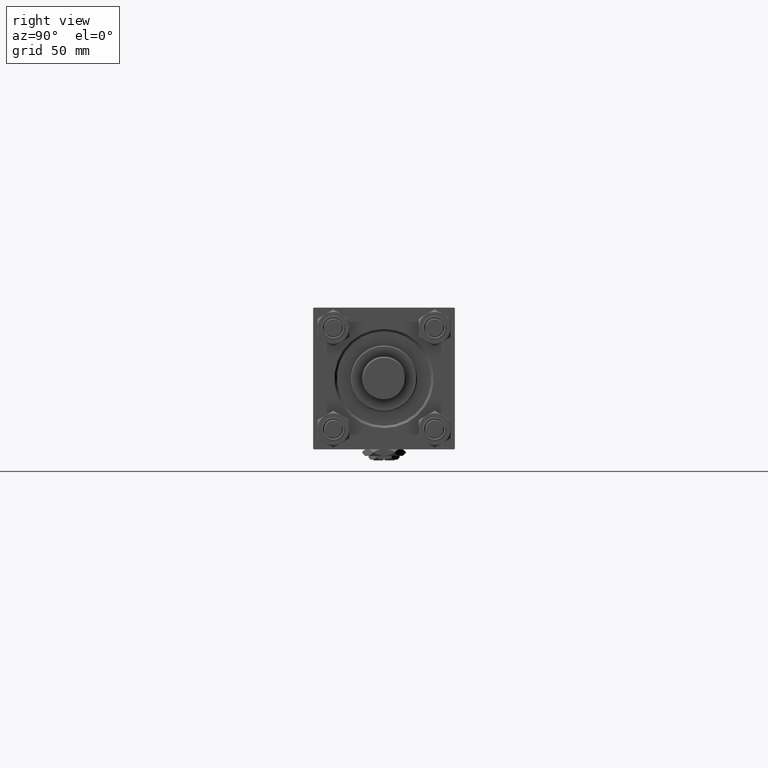
[diagram: clean part render]
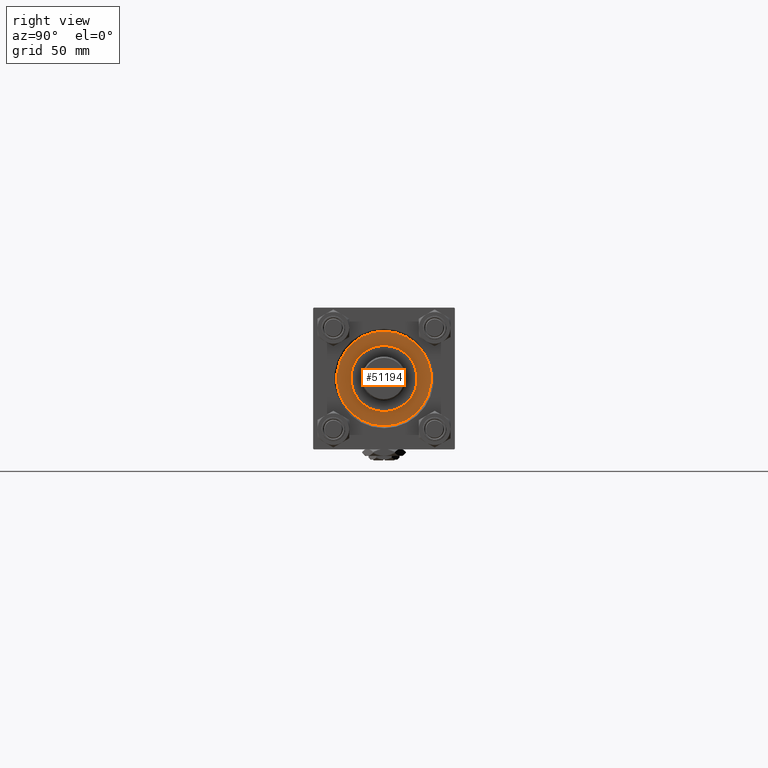
[diagram: same view with one face highlighted and labeled with its STEP entity id]
A machine part, right view. The second image highlights one B-rep face of the part: STEP entity #51194.
In plain terms, the highlighted planar face has unit normal (1, 0, -0).
Its self-contained STEP definition (entity closure, byte-faithful):
#3715 = FACE_BOUND ( 'NONE', #30702, .T. ) ;
#4479 = CIRCLE ( 'NONE', #34906, 21.00000000000000000 ) ;
#4548 = CIRCLE ( 'NONE', #24032, 30.00000000000000000 ) ;
#5915 = CARTESIAN_POINT ( 'NONE',  ( 0.000000000000000000, 0.000000000000000000, 28.69999999999999929 ) ) ;
#8203 = FACE_OUTER_BOUND ( 'NONE', #34581, .T. ) ;
#14414 = ORIENTED_EDGE ( 'NONE', *, *, #30019, .F. ) ;
#14615 = CARTESIAN_POINT ( 'NONE',  ( 0.000000000000000000, 0.000000000000000000, 28.69999999999999929 ) ) ;
#15078 = ORIENTED_EDGE ( 'NONE', *, *, #47050, .T. ) ;
#15327 = EDGE_CURVE ( 'NONE', #42061, #28892, #4479, .T. ) ;
#15872 = CARTESIAN_POINT ( 'NONE',  ( 0.000000000000000000, 0.000000000000000000, 28.69999999999999929 ) ) ;
#15906 = DIRECTION ( 'NONE',  ( 0.000000000000000000, 0.000000000000000000, 1.000000000000000000 ) ) ;
#16127 = DIRECTION ( 'NONE',  ( 1.000000000000000000, 0.000000000000000000, -0.000000000000000000 ) ) ;
#16341 = ORIENTED_EDGE ( 'NONE', *, *, #18420, .T. ) ;
#17273 = DIRECTION ( 'NONE',  ( 1.000000000000000000, 0.000000000000000000, 0.000000000000000000 ) ) ;
#17341 = AXIS2_PLACEMENT_3D ( 'NONE', #15872, #44178, #16127 ) ;
#18420 = EDGE_CURVE ( 'NONE', #26316, #28133, #4548, .T. ) ;
#20930 = ORIENTED_EDGE ( 'NONE', *, *, #15327, .F. ) ;
#21538 = CIRCLE ( 'NONE', #51124, 30.00000000000000000 ) ;
#24032 = AXIS2_PLACEMENT_3D ( 'NONE', #14615, #30750, #46901 ) ;
#26316 = VERTEX_POINT ( 'NONE', #50721 ) ;
#27722 = CARTESIAN_POINT ( 'NONE',  ( 21.00000000000000000, 2.571758278209441661E-15, 28.69999999999999929 ) ) ;
#28133 = VERTEX_POINT ( 'NONE', #50247 ) ;
#28892 = VERTEX_POINT ( 'NONE', #50258 ) ;
#30019 = EDGE_CURVE ( 'NONE', #28892, #42061, #46240, .T. ) ;
#30702 = EDGE_LOOP ( 'NONE', ( #14414, #20930 ) ) ;
#30750 = DIRECTION ( 'NONE',  ( 0.000000000000000000, 0.000000000000000000, 1.000000000000000000 ) ) ;
#32042 = DIRECTION ( 'NONE',  ( 1.000000000000000000, 0.000000000000000000, 0.000000000000000000 ) ) ;
#34581 = EDGE_LOOP ( 'NONE', ( #15078, #16341 ) ) ;
#34906 = AXIS2_PLACEMENT_3D ( 'NONE', #5915, #46388, #34982 ) ;
#34982 = DIRECTION ( 'NONE',  ( 1.000000000000000000, 0.000000000000000000, 0.000000000000000000 ) ) ;
#35973 = PLANE ( 'NONE',  #17341 ) ;
#37651 = DIRECTION ( 'NONE',  ( 0.000000000000000000, 0.000000000000000000, 1.000000000000000000 ) ) ;
#38648 = AXIS2_PLACEMENT_3D ( 'NONE', #52156, #15906, #32042 ) ;
#42061 = VERTEX_POINT ( 'NONE', #27722 ) ;
#42146 = CARTESIAN_POINT ( 'NONE',  ( 0.000000000000000000, 0.000000000000000000, 28.69999999999999929 ) ) ;
#44178 = DIRECTION ( 'NONE',  ( 0.000000000000000000, 0.000000000000000000, 1.000000000000000000 ) ) ;
#46240 = CIRCLE ( 'NONE', #38648, 21.00000000000000000 ) ;
#46388 = DIRECTION ( 'NONE',  ( 0.000000000000000000, 0.000000000000000000, 1.000000000000000000 ) ) ;
#46901 = DIRECTION ( 'NONE',  ( 1.000000000000000000, 0.000000000000000000, 0.000000000000000000 ) ) ;
#47050 = EDGE_CURVE ( 'NONE', #28133, #26316, #21538, .T. ) ;
#50247 = CARTESIAN_POINT ( 'NONE',  ( -30.00000000000000000, 0.000000000000000000, 28.69999999999999929 ) ) ;
#50258 = CARTESIAN_POINT ( 'NONE',  ( -21.00000000000000000, 0.000000000000000000, 28.69999999999999929 ) ) ;
#50721 = CARTESIAN_POINT ( 'NONE',  ( 30.00000000000000000, 3.673940397442059178E-15, 28.69999999999999929 ) ) ;
#51124 = AXIS2_PLACEMENT_3D ( 'NONE', #42146, #37651, #17273 ) ;
#51194 = ADVANCED_FACE ( 'NONE', ( #3715, #8203 ), #35973, .T. ) ;
#52156 = CARTESIAN_POINT ( 'NONE',  ( 0.000000000000000000, 0.000000000000000000, 28.69999999999999929 ) ) ;